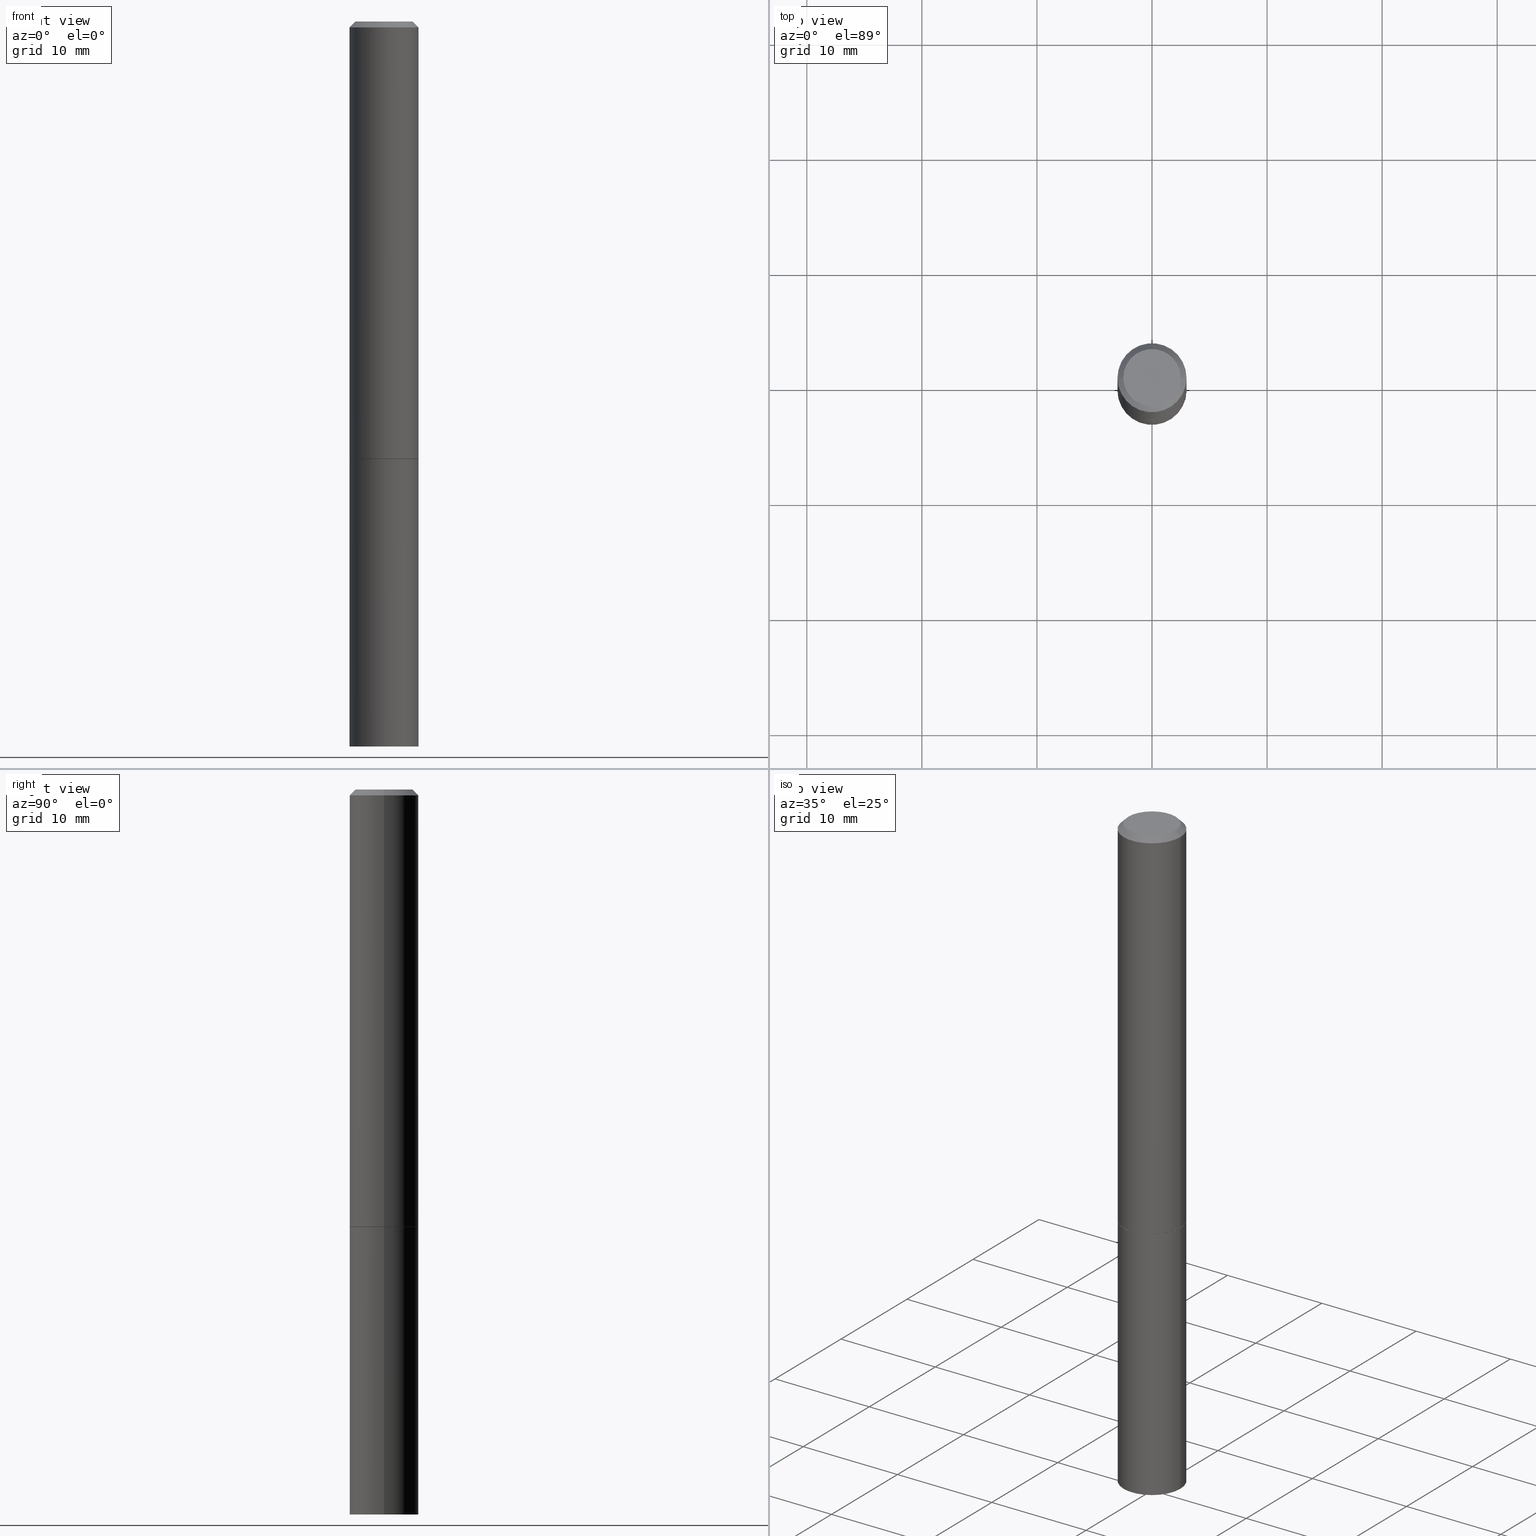
[diagram: canonical four-view strip — front | top / right | iso, engineering-drawing reading convention]
A machine part, canonical four-view strip (front | top / right | iso — engineering-drawing reading convention). The complete STEP part file that produces these views, byte-faithful:
ISO-10303-21;
HEADER;
FILE_DESCRIPTION (( 'STEP AP203' ),
    '1' );
FILE_NAME ('82991.STEP',
    '2024-02-29T21:14:55',
    ( '' ),
    ( '' ),
    'SwSTEP 2.0',
    'SolidWorks 2023',
    '' );
FILE_SCHEMA (( 'CONFIG_CONTROL_DESIGN' ));
ENDSEC;

DATA;
#1 =( LENGTH_UNIT ( ) NAMED_UNIT ( * ) SI_UNIT ( $, .METRE. ) );
#2 = EDGE_LOOP ( 'NONE', ( #226, #62, #176, #291 ) ) ;
#3 = APPROVAL ( #292, 'UNSPECIFIED' ) ;
#4 =( NAMED_UNIT ( * ) SI_UNIT ( $, .STERADIAN. ) SOLID_ANGLE_UNIT ( ) );
#5 = APPROVAL_STATUS ( 'not_yet_approved' ) ;
#6 = ORIENTED_EDGE ( 'NONE', *, *, #171, .T. ) ;
#7 = CIRCLE ( 'NONE', #296, 0.1180999999999999966 ) ;
#8 = CIRCLE ( 'NONE', #111, 0.09809999999999986786 ) ;
#9 = CARTESIAN_POINT ( 'NONE',  ( -0.09809999999999986786, 7.199434520694528223E-16, -1.707404996040655701E-17 ) ) ;
#10 = EDGE_LOOP ( 'NONE', ( #316, #66, #36, #224 ) ) ;
#11 = DIRECTION ( 'NONE',  ( -2.445468806185136597E-29, 3.491481338843145583E-15, 1.000000000000000000 ) ) ;
#12 = ADVANCED_FACE ( 'NONE', ( #230 ), #159, .T. ) ;
#13 = DATE_TIME_ROLE ( 'classification_date' ) ;
#14 = DIRECTION ( 'NONE',  ( -2.445468806185136597E-29, 3.491481338843145583E-15, 1.000000000000000000 ) ) ;
#15 = APPROVAL_DATE_TIME ( #348, #3 ) ;
#16 = LINE ( 'NONE', #128, #46 ) ;
#17 = FACE_OUTER_BOUND ( 'NONE', #2, .T. ) ;
#18 = FACE_OUTER_BOUND ( 'NONE', #10, .T. ) ;
#19 = DIRECTION ( 'NONE',  ( -2.445468806185136597E-29, 3.491481338843145583E-15, 1.000000000000000000 ) ) ;
#20 = APPROVAL ( #5, 'UNSPECIFIED' ) ;
#21 = FACE_OUTER_BOUND ( 'NONE', #88, .T. ) ;
#22 = DIRECTION ( 'NONE',  ( -2.445468806185136597E-29, 3.491481338843145583E-15, 1.000000000000000000 ) ) ;
#23 = DIRECTION ( 'NONE',  ( -2.445468806185136597E-29, 3.491481338843145583E-15, 1.000000000000000000 ) ) ;
#24 = EDGE_CURVE ( 'NONE', #259, #223, #74, .T. ) ;
#25 = CARTESIAN_POINT ( 'NONE',  ( 0.000000000000000000, 0.000000000000000000, 0.000000000000000000 ) ) ;
#26 = EDGE_LOOP ( 'NONE', ( #200, #150 ) ) ;
#27 = DIRECTION ( 'NONE',  ( 0.7071067811864267805, -2.468850131080992517E-15, 0.7071067811866682540 ) ) ;
#28 = VERTEX_POINT ( 'NONE', #327 ) ;
#29 = CC_DESIGN_DATE_AND_TIME_ASSIGNMENT ( #116, #84, ( #67 ) ) ;
#30 = AXIS2_PLACEMENT_3D ( 'NONE', #151, #210, #323 ) ;
#31 = LOCAL_TIME ( 16, 14, 55.00000000000000000, #153 ) ;
#32 = APPROVAL_PERSON_ORGANIZATION ( #124, #3, #297 ) ;
#33 = CALENDAR_DATE ( 2024, 29, 2 ) ;
#34 = VERTEX_POINT ( 'NONE', #350 ) ;
#35 = PERSON_AND_ORGANIZATION ( #252, #156 ) ;
#36 = ORIENTED_EDGE ( 'NONE', *, *, #352, .T. ) ;
#37 = CARTESIAN_POINT ( 'NONE',  ( 0.000000000000000000, 0.000000000000000000, 0.000000000000000000 ) ) ;
#38 = ORIENTED_EDGE ( 'NONE', *, *, #158, .T. ) ;
#39 = CIRCLE ( 'NONE', #289, 0.1180999999999999966 ) ;
#40 = CC_DESIGN_DATE_AND_TIME_ASSIGNMENT ( #231, #13, ( #311 ) ) ;
#41 = CALENDAR_DATE ( 2024, 29, 2 ) ;
#42 = ORIENTED_EDGE ( 'NONE', *, *, #183, .T. ) ;
#43 = ORIENTED_EDGE ( 'NONE', *, *, #229, .T. ) ;
#44 = PERSON_AND_ORGANIZATION_ROLE ( 'classification_officer' ) ;
#45 = CARTESIAN_POINT ( 'NONE',  ( -0.1170999999999999958, -4.391210539334270537E-15, -1.496000000000000663 ) ) ;
#46 = VECTOR ( 'NONE', #233, 39.37007874015748143 ) ;
#47 = LOCAL_TIME ( 16, 14, 55.00000000000000000, #263 ) ;
#48 = ORIENTED_EDGE ( 'NONE', *, *, #330, .T. ) ;
#49 = DIRECTION ( 'NONE',  ( 1.000000000000000000, -6.982962677686266711E-15, 4.876176775795936353E-29 ) ) ;
#50 = CARTESIAN_POINT ( 'NONE',  ( -0.1180999999999999966, -6.102437652888322939E-15, -2.480300000000000171 ) ) ;
#51 = DIRECTION ( 'NONE',  ( 2.438088387897960049E-29, -3.491481338843145188E-15, -1.000000000000000000 ) ) ;
#52 = CARTESIAN_POINT ( 'NONE',  ( 0.1180999999999999966, -9.484609056967403598E-15, -2.480300000000000171 ) ) ;
#53 = DIRECTION ( 'NONE',  ( 1.000000000000000000, -6.982962677686265922E-15, 4.876176775795935793E-29 ) ) ;
#54 = ADVANCED_FACE ( 'NONE', ( #72 ), #152, .T. ) ;
#55 = DIRECTION ( 'NONE',  ( 1.000000000000000000, -6.982962677686265133E-15, 0.000000000000000000 ) ) ;
#56 = CIRCLE ( 'NONE', #161, 0.1180999999999999966 ) ;
#57 = PERSON_AND_ORGANIZATION ( #252, #156 ) ;
#58 = EDGE_CURVE ( 'NONE', #255, #178, #98, .T. ) ;
#59 = DIRECTION ( 'NONE',  ( 0.000000000000000000, 0.000000000000000000, 1.000000000000000000 ) ) ;
#60 = ORIENTED_EDGE ( 'NONE', *, *, #24, .F. ) ;
#61 = DIRECTION ( 'NONE',  ( 1.000000000000000000, 0.000000000000000000, 0.000000000000000000 ) ) ;
#62 = ORIENTED_EDGE ( 'NONE', *, *, #136, .T. ) ;
#63 = CALENDAR_DATE ( 2024, 29, 2 ) ;
#64 = VERTEX_POINT ( 'NONE', #71 ) ;
#65 = PERSON_AND_ORGANIZATION ( #252, #156 ) ;
#66 = ORIENTED_EDGE ( 'NONE', *, *, #123, .T. ) ;
#67 = PRODUCT_DEFINITION ( 'UNKNOWN', '', #360, #202 ) ;
#68 = EDGE_LOOP ( 'NONE', ( #282, #92, #354, #114 ) ) ;
#69 = DIRECTION ( 'NONE',  ( 1.000000000000000000, -6.982962677686266711E-15, 0.000000000000000000 ) ) ;
#70 = CC_DESIGN_PERSON_AND_ORGANIZATION_ASSIGNMENT ( #257, #306, ( #360 ) ) ;
#71 = CARTESIAN_POINT ( 'NONE',  ( 0.1170999999999999958, -6.040961012466409185E-15, -1.496000000000000663 ) ) ;
#72 = FACE_OUTER_BOUND ( 'NONE', #68, .T. ) ;
#73 = CIRCLE ( 'NONE', #349, 0.1180999999999999966 ) ;
#74 = LINE ( 'NONE', #157, #78 ) ;
#75 = CARTESIAN_POINT ( 'NONE',  ( 4.890937612370276662E-31, -6.982962677686296539E-17, -0.02000000000000001776 ) ) ;
#76 = PRODUCT_RELATED_PRODUCT_CATEGORY ( 'detail', '', ( #328 ) ) ;
#77 = FACE_OUTER_BOUND ( 'NONE', #310, .T. ) ;
#78 = VECTOR ( 'NONE', #298, 39.37007874015748143 ) ;
#79 = DIRECTION ( 'NONE',  ( 1.000000000000000000, -6.982962677686264344E-15, 0.000000000000000000 ) ) ;
#80 = CONICAL_SURFACE ( 'NONE', #96, 0.1180999999999998162, 0.7853981633974468357 ) ;
#81 = DIRECTION ( 'NONE',  ( 1.000000000000000000, -6.982962677686273021E-15, 0.000000000000000000 ) ) ;
#82 = ADVANCED_FACE ( 'NONE', ( #18 ), #318, .T. ) ;
#83 = PLANE ( 'NONE',  #118 ) ;
#84 = DATE_TIME_ROLE ( 'creation_date' ) ;
#85 = PERSON_AND_ORGANIZATION ( #252, #156 ) ;
#86 = ORIENTED_EDGE ( 'NONE', *, *, #194, .F. ) ;
#87 = PERSON_AND_ORGANIZATION ( #252, #156 ) ;
#88 = EDGE_LOOP ( 'NONE', ( #6, #313 ) ) ;
#89 = CIRCLE ( 'NONE', #30, 0.09809999999999986786 ) ;
#90 = VECTOR ( 'NONE', #105, 39.37007874015748143 ) ;
#91 = DATE_AND_TIME ( #63, #258 ) ;
#92 = ORIENTED_EDGE ( 'NONE', *, *, #24, .T. ) ;
#93 = ADVANCED_FACE ( 'NONE', ( #17 ), #182, .T. ) ;
#94 = ORIENTED_EDGE ( 'NONE', *, *, #123, .F. ) ;
#95 = CARTESIAN_POINT ( 'NONE',  ( -0.1180999999999998995, 8.391509709326776054E-16, -5.809262341591038879E-30 ) ) ;
#96 = AXIS2_PLACEMENT_3D ( 'NONE', #160, #134, #238 ) ;
#97 = DIRECTION ( 'NONE',  ( 1.000000000000000000, -6.982962677686266711E-15, 4.876176775795935232E-29 ) ) ;
#98 = LINE ( 'NONE', #45, #274 ) ;
#99 = APPLICATION_CONTEXT ( 'configuration controlled 3d designs of mechanical parts and assemblies' ) ;
#100 = DIRECTION ( 'NONE',  ( 1.000000000000000000, -6.982962677686266711E-15, 0.000000000000000000 ) ) ;
#101 = CC_DESIGN_SECURITY_CLASSIFICATION ( #311, ( #360 ) ) ;
#102 = DIRECTION ( 'NONE',  ( 1.000000000000000000, -6.982962677686265133E-15, 0.000000000000000000 ) ) ;
#103 = EDGE_CURVE ( 'NONE', #317, #223, #56, .T. ) ;
#104 = FACE_OUTER_BOUND ( 'NONE', #339, .T. ) ;
#105 = DIRECTION ( 'NONE',  ( -0.7071067811865464625, 2.468850131082245622E-15, -0.7071067811865485719 ) ) ;
#106 = CIRCLE ( 'NONE', #126, 0.1180999999999998162 ) ;
#107 = DIRECTION ( 'NONE',  ( -2.445468806185136877E-29, 3.491481338843145188E-15, 1.000000000000000000 ) ) ;
#108 = FACE_OUTER_BOUND ( 'NONE', #284, .T. ) ;
#109 = DIRECTION ( 'NONE',  ( -2.438088387897960049E-29, 3.491481338843145188E-15, 1.000000000000000000 ) ) ;
#110 = COORDINATED_UNIVERSAL_TIME_OFFSET ( 5, 0, .BEHIND. ) ;
#111 = AXIS2_PLACEMENT_3D ( 'NONE', #271, #22, #137 ) ;
#112 = ORIENTED_EDGE ( 'NONE', *, *, #330, .F. ) ;
#113 = UNCERTAINTY_MEASURE_WITH_UNIT (LENGTH_MEASURE( 1.000000000000000082E-05 ), #120, 'distance_accuracy_value', 'NONE');
#114 = ORIENTED_EDGE ( 'NONE', *, *, #158, .F. ) ;
#115 = EDGE_CURVE ( 'NONE', #178, #34, #39, .T. ) ;
#116 = DATE_AND_TIME ( #33, #144 ) ;
#117 = ORIENTED_EDGE ( 'NONE', *, *, #229, .F. ) ;
#118 = AXIS2_PLACEMENT_3D ( 'NONE', #169, #361, #188 ) ;
#119 = AXIS2_PLACEMENT_3D ( 'NONE', #167, #273, #268 ) ;
#120 =( CONVERSION_BASED_UNIT ( 'INCH', #222 ) LENGTH_UNIT ( ) NAMED_UNIT ( #133 ) );
#121 = ORIENTED_EDGE ( 'NONE', *, *, #146, .F. ) ;
#122 = CARTESIAN_POINT ( 'NONE',  ( 3.658421334052965846E-29, -5.223256082909347726E-15, -1.496000000000000663 ) ) ;
#123 = EDGE_CURVE ( 'NONE', #255, #64, #337, .T. ) ;
#124 = PERSON_AND_ORGANIZATION ( #252, #156 ) ;
#125 = DIRECTION ( 'NONE',  ( 1.000000000000000000, -6.982962677686264344E-15, 0.000000000000000000 ) ) ;
#126 = AXIS2_PLACEMENT_3D ( 'NONE', #261, #320, #69 ) ;
#127 = AXIS2_PLACEMENT_3D ( 'NONE', #25, #358, #329 ) ;
#128 = CARTESIAN_POINT ( 'NONE',  ( 0.1180999999999999966, -8.246878922347480654E-16, 5.758764772215000440E-30 ) ) ;
#129 = LINE ( 'NONE', #95, #215 ) ;
#130 = CC_DESIGN_PERSON_AND_ORGANIZATION_ASSIGNMENT ( #87, #199, ( #328 ) ) ;
#131 = DIRECTION ( 'NONE',  ( -2.445468806185136597E-29, 3.491481338843145583E-15, 1.000000000000000000 ) ) ;
#132 = AXIS2_PLACEMENT_3D ( 'NONE', #262, #11, #49 ) ;
#133 = DIMENSIONAL_EXPONENTS ( 1.000000000000000000, 0.000000000000000000, 0.000000000000000000, 0.000000000000000000, 0.000000000000000000, 0.000000000000000000, 0.000000000000000000 ) ;
#134 = DIRECTION ( 'NONE',  ( 2.445468806185136597E-29, -3.491481338843145583E-15, -1.000000000000000000 ) ) ;
#135 = PLANE ( 'NONE',  #319 ) ;
#136 = EDGE_CURVE ( 'NONE', #178, #340, #129, .T. ) ;
#137 = DIRECTION ( 'NONE',  ( 1.000000000000000000, -6.982962677686265922E-15, 4.875229006325904019E-29 ) ) ;
#138 = CIRCLE ( 'NONE', #184, 0.1180999999999999966 ) ;
#139 = FACE_OUTER_BOUND ( 'NONE', #253, .T. ) ;
#140 = CONICAL_SURFACE ( 'NONE', #333, 0.1170999999999999958, 0.7853981633972775267 ) ;
#141 = FACE_OUTER_BOUND ( 'NONE', #345, .T. ) ;
#142 = DIRECTION ( 'NONE',  ( 0.7071067811865464625, -7.319954787623252890E-15, -0.7071067811865485719 ) ) ;
#143 = ORIENTED_EDGE ( 'NONE', *, *, #58, .T. ) ;
#144 = LOCAL_TIME ( 16, 14, 55.00000000000000000, #110 ) ;
#145 = ORIENTED_EDGE ( 'NONE', *, *, #285, .F. ) ;
#146 = EDGE_CURVE ( 'NONE', #223, #317, #280, .T. ) ;
#147 = PERSON_AND_ORGANIZATION_ROLE ( 'creator' ) ;
#148 = EDGE_LOOP ( 'NONE', ( #60, #43, #38, #121 ) ) ;
#149 = COORDINATED_UNIVERSAL_TIME_OFFSET ( 5, 0, .BEHIND. ) ;
#150 = ORIENTED_EDGE ( 'NONE', *, *, #146, .T. ) ;
#151 = CARTESIAN_POINT ( 'NONE',  ( 4.175405657340879278E-46, -5.961372681521788801E-32, -1.707404996040164512E-17 ) ) ;
#152 = CYLINDRICAL_SURFACE ( 'NONE', #132, 0.1180999999999999966 ) ;
#153 = COORDINATED_UNIVERSAL_TIME_OFFSET ( 5, 0, .BEHIND. ) ;
#154 = CARTESIAN_POINT ( 'NONE',  ( 3.655975865246779683E-29, -5.219764601570503930E-15, -1.495000000000000329 ) ) ;
#155 = AXIS2_PLACEMENT_3D ( 'NONE', #351, #235, #209 ) ;
#156 = ORGANIZATION ( 'UNSPECIFIED', 'UNSPECIFIED', '' ) ;
#157 = CARTESIAN_POINT ( 'NONE',  ( -0.1180999999999999966, 8.391509709326782957E-16, -5.809262341591043784E-30 ) ) ;
#158 = EDGE_CURVE ( 'NONE', #221, #317, #16, .T. ) ;
#159 = CYLINDRICAL_SURFACE ( 'NONE', #155, 0.1180999999999999966 ) ;
#160 = CARTESIAN_POINT ( 'NONE',  ( 4.890937612370276662E-31, -6.982962677686296539E-17, -0.02000000000000001776 ) ) ;
#161 = AXIS2_PLACEMENT_3D ( 'NONE', #180, #181, #294 ) ;
#162 = VECTOR ( 'NONE', #142, 39.37007874015748143 ) ;
#163 = DIRECTION ( 'NONE',  ( -1.000000000000000000, 6.982962677686265922E-15, -4.876176775795935793E-29 ) ) ;
#164 = EDGE_CURVE ( 'NONE', #321, #340, #168, .T. ) ;
#165 = CARTESIAN_POINT ( 'NONE',  ( 0.1180999999999998162, -8.800544403136795556E-16, -0.02000000000000001776 ) ) ;
#166 = PRODUCT_DEFINITION_SHAPE ( 'NONE', 'NONE',  #67 ) ;
#167 = CARTESIAN_POINT ( 'NONE',  ( 4.890937612370276662E-31, -6.982962677686296539E-17, -0.02000000000000001776 ) ) ;
#168 = CIRCLE ( 'NONE', #242, 0.1180999999999998162 ) ;
#169 = CARTESIAN_POINT ( 'NONE',  ( 8.246878922347846488E-16, 0.1180999999999947786, -1.496000000000000885 ) ) ;
#170 = AXIS2_PLACEMENT_3D ( 'NONE', #246, #109, #53 ) ;
#171 = EDGE_CURVE ( 'NONE', #365, #28, #89, .T. ) ;
#172 = APPROVAL_ROLE ( '' ) ;
#173 = ORIENTED_EDGE ( 'NONE', *, *, #183, .F. ) ;
#174 = MECHANICAL_CONTEXT ( 'NONE', #99, 'mechanical' ) ;
#175 = AXIS2_PLACEMENT_3D ( 'NONE', #300, #23, #191 ) ;
#176 = ORIENTED_EDGE ( 'NONE', *, *, #164, .F. ) ;
#177 = MANIFOLD_SOLID_BREP ( 'Body-Move/Copy2[2]', #347 ) ;
#178 = VERTEX_POINT ( 'NONE', #212 ) ;
#179 = EDGE_LOOP ( 'NONE', ( #86, #117 ) ) ;
#180 = CARTESIAN_POINT ( 'NONE',  ( 3.658421334052965286E-29, -5.223256082909346937E-15, -1.496000000000000441 ) ) ;
#181 = DIRECTION ( 'NONE',  ( -2.445468806185136597E-29, 3.491481338843145583E-15, 1.000000000000000000 ) ) ;
#182 = CYLINDRICAL_SURFACE ( 'NONE', #237, 0.1180999999999998995 ) ;
#183 = EDGE_CURVE ( 'NONE', #340, #321, #106, .T. ) ;
#184 = AXIS2_PLACEMENT_3D ( 'NONE', #245, #19, #55 ) ;
#185 = CARTESIAN_POINT ( 'NONE',  ( 3.658421334052965846E-29, -5.223256082909347726E-15, -1.496000000000000663 ) ) ;
#186 = DIRECTION ( 'NONE',  ( -1.000000000000000000, 6.982962677686265922E-15, -4.876176775795935793E-29 ) ) ;
#187 = EDGE_CURVE ( 'NONE', #34, #321, #241, .T. ) ;
#188 = DIRECTION ( 'NONE',  ( -1.000000000000000000, 6.982962677686265922E-15, -4.876176775795935793E-29 ) ) ;
#189 = AXIS2_PLACEMENT_3D ( 'NONE', #236, #264, #102 ) ;
#190 = AXIS2_PLACEMENT_3D ( 'NONE', #122, #131, #346 ) ;
#191 = DIRECTION ( 'NONE',  ( 1.000000000000000000, -6.982962677686264344E-15, 0.000000000000000000 ) ) ;
#192 = PLANE ( 'NONE',  #325 ) ;
#193 = DIRECTION ( 'NONE',  ( -2.445468806185136597E-29, 3.491481338843145583E-15, 1.000000000000000000 ) ) ;
#194 = EDGE_CURVE ( 'NONE', #221, #259, #7, .T. ) ;
#195 = CALENDAR_DATE ( 2024, 29, 2 ) ;
#196 = ORIENTED_EDGE ( 'NONE', *, *, #164, .T. ) ;
#197 = EDGE_CURVE ( 'NONE', #34, #178, #138, .T. ) ;
#198 = LINE ( 'NONE', #364, #211 ) ;
#199 = PERSON_AND_ORGANIZATION_ROLE ( 'design_owner' ) ;
#200 = ORIENTED_EDGE ( 'NONE', *, *, #103, .T. ) ;
#201 = APPROVAL_ROLE ( '' ) ;
#202 = DESIGN_CONTEXT ( 'detailed design', #266, 'design' ) ;
#203 = ORIENTED_EDGE ( 'NONE', *, *, #256, .T. ) ;
#204 = ADVANCED_FACE ( 'NONE', ( #335 ), #83, .F. ) ;
#205 = DIRECTION ( 'NONE',  ( -2.445468806185136597E-29, 3.491481338843145583E-15, 1.000000000000000000 ) ) ;
#206 = CC_DESIGN_APPROVAL ( #3, ( #311 ) ) ;
#207 = ORIENTED_EDGE ( 'NONE', *, *, #352, .F. ) ;
#208 = ADVANCED_FACE ( 'NONE', ( #240 ), #192, .T. ) ;
#209 = DIRECTION ( 'NONE',  ( 1.000000000000000000, -6.982962677686266711E-15, 4.876176775795936353E-29 ) ) ;
#210 = DIRECTION ( 'NONE',  ( -2.445468806185136597E-29, 3.491481338843145583E-15, 1.000000000000000000 ) ) ;
#211 = VECTOR ( 'NONE', #27, 39.37007874015748143 ) ;
#212 = CARTESIAN_POINT ( 'NONE',  ( -0.1180999999999999966, -1.805646143241002656E-15, -1.495000000000000329 ) ) ;
#213 = CARTESIAN_POINT ( 'NONE',  ( 6.850286386810217648E-16, 0.09809999999999986786, -3.510513443207129191E-16 ) ) ;
#214 = CARTESIAN_POINT ( 'NONE',  ( 3.658421334052965846E-29, -5.223256082909347726E-15, -1.496000000000000663 ) ) ;
#215 = VECTOR ( 'NONE', #353, 39.37007874015748143 ) ;
#216 = CARTESIAN_POINT ( 'NONE',  ( 0.1180999999999998995, -8.246878922347473751E-16, 5.758764772214994835E-30 ) ) ;
#217 = CARTESIAN_POINT ( 'NONE',  ( -0.1180999999999998162, 7.548582654578837811E-16, -0.02000000000000001776 ) ) ;
#218 = CARTESIAN_POINT ( 'NONE',  ( -0.1170999999999999958, -4.385912084986047346E-15, -1.496000000000000663 ) ) ;
#219 = ADVANCED_BREP_SHAPE_REPRESENTATION ( '82991', ( #288, #177, #302 ), #290 ) ;
#220 = SECURITY_CLASSIFICATION_LEVEL ( 'unclassified' ) ;
#221 = VERTEX_POINT ( 'NONE', #52 ) ;
#222 = LENGTH_MEASURE_WITH_UNIT ( LENGTH_MEASURE( 0.02539999999999999897 ), #1 );
#223 = VERTEX_POINT ( 'NONE', #304 ) ;
#224 = ORIENTED_EDGE ( 'NONE', *, *, #115, .F. ) ;
#225 = CIRCLE ( 'NONE', #175, 0.1170999999999999958 ) ;
#226 = ORIENTED_EDGE ( 'NONE', *, *, #197, .T. ) ;
#227 = APPLICATION_PROTOCOL_DEFINITION ( 'international standard', 'config_control_design', 1994, #266 ) ;
#228 = ORIENTED_EDGE ( 'NONE', *, *, #115, .T. ) ;
#229 = EDGE_CURVE ( 'NONE', #259, #221, #73, .T. ) ;
#230 = FACE_OUTER_BOUND ( 'NONE', #148, .T. ) ;
#231 = DATE_AND_TIME ( #234, #31 ) ;
#232 = DIRECTION ( 'NONE',  ( -2.445468806185136597E-29, 3.491481338843145583E-15, 1.000000000000000000 ) ) ;
#233 = DIRECTION ( 'NONE',  ( -2.445468806185136877E-29, 3.491481338843145188E-15, 1.000000000000000000 ) ) ;
#234 = CALENDAR_DATE ( 2024, 29, 2 ) ;
#235 = DIRECTION ( 'NONE',  ( -2.445468806185136597E-29, 3.491481338843145583E-15, 1.000000000000000000 ) ) ;
#236 = CARTESIAN_POINT ( 'NONE',  ( 3.658421334052965286E-29, -5.223256082909346937E-15, -1.496000000000000441 ) ) ;
#237 = AXIS2_PLACEMENT_3D ( 'NONE', #295, #232, #97 ) ;
#238 = DIRECTION ( 'NONE',  ( -1.000000000000000000, 6.982962677686266711E-15, 0.000000000000000000 ) ) ;
#239 = ADVANCED_FACE ( 'NONE', ( #21 ), #135, .F. ) ;
#240 = FACE_OUTER_BOUND ( 'NONE', #179, .T. ) ;
#241 = LINE ( 'NONE', #216, #332 ) ;
#242 = AXIS2_PLACEMENT_3D ( 'NONE', #75, #265, #100 ) ;
#243 = LOCAL_TIME ( 16, 14, 55.00000000000000000, #149 ) ;
#244 = ADVANCED_FACE ( 'NONE', ( #108 ), #276, .T. ) ;
#245 = CARTESIAN_POINT ( 'NONE',  ( 3.655975865246779683E-29, -5.219764601570503930E-15, -1.495000000000000329 ) ) ;
#246 = CARTESIAN_POINT ( 'NONE',  ( 3.658421334052965846E-29, -5.223256082909347726E-15, -1.496000000000000663 ) ) ;
#247 = DATE_AND_TIME ( #195, #243 ) ;
#248 = ORIENTED_EDGE ( 'NONE', *, *, #256, .F. ) ;
#249 = ADVANCED_FACE ( 'NONE', ( #141 ), #362, .F. ) ;
#250 = LINE ( 'NONE', #308, #162 ) ;
#251 = APPROVAL_PERSON_ORGANIZATION ( #65, #20, #201 ) ;
#252 = PERSON ( 'UNSPECIFIED', 'UNSPECIFIED', 'UNSPECIFIED', ('UNSPECIFIED'), ('UNSPECIFIED'), ('UNSPECIFIED') ) ;
#253 = EDGE_LOOP ( 'NONE', ( #112, #293, #344, #42 ) ) ;
#254 = APPLICATION_PROTOCOL_DEFINITION ( 'international standard', 'config_control_design', 1994, #99 ) ;
#255 = VERTEX_POINT ( 'NONE', #218 ) ;
#256 = EDGE_CURVE ( 'NONE', #64, #255, #225, .T. ) ;
#257 = PERSON_AND_ORGANIZATION ( #252, #156 ) ;
#258 = LOCAL_TIME ( 16, 14, 55.00000000000000000, #281 ) ;
#259 = VERTEX_POINT ( 'NONE', #50 ) ;
#260 = SHAPE_DEFINITION_REPRESENTATION ( #166, #219 ) ;
#261 = CARTESIAN_POINT ( 'NONE',  ( 4.890937612370276662E-31, -6.982962677686296539E-17, -0.02000000000000001776 ) ) ;
#262 = CARTESIAN_POINT ( 'NONE',  ( 0.000000000000000000, 0.000000000000000000, 0.000000000000000000 ) ) ;
#263 = COORDINATED_UNIVERSAL_TIME_OFFSET ( 5, 0, .BEHIND. ) ;
#264 = DIRECTION ( 'NONE',  ( -2.445468806185136597E-29, 3.491481338843145583E-15, 1.000000000000000000 ) ) ;
#265 = DIRECTION ( 'NONE',  ( -2.445468806185136597E-29, 3.491481338843145583E-15, 1.000000000000000000 ) ) ;
#266 = APPLICATION_CONTEXT ( 'configuration controlled 3d designs of mechanical parts and assemblies' ) ;
#267 = DIRECTION ( 'NONE',  ( 1.000000000000000000, -6.982962677686265133E-15, 0.000000000000000000 ) ) ;
#268 = DIRECTION ( 'NONE',  ( -1.000000000000000000, 6.982962677686266711E-15, 0.000000000000000000 ) ) ;
#269 = APPROVAL_PERSON_ORGANIZATION ( #343, #307, #172 ) ;
#270 = DIRECTION ( 'NONE',  ( 1.000000000000000000, -6.982962677686273021E-15, 0.000000000000000000 ) ) ;
#271 = CARTESIAN_POINT ( 'NONE',  ( 4.175405657340879278E-46, -5.961372681521788801E-32, -1.707404996040164512E-17 ) ) ;
#272 = ADVANCED_FACE ( 'NONE', ( #77 ), #275, .T. ) ;
#273 = DIRECTION ( 'NONE',  ( 2.445468806185136597E-29, -3.491481338843145583E-15, -1.000000000000000000 ) ) ;
#274 = VECTOR ( 'NONE', #322, 39.37007874015748143 ) ;
#275 = CONICAL_SURFACE ( 'NONE', #119, 0.1180999999999998162, 0.7853981633974468357 ) ;
#276 = CYLINDRICAL_SURFACE ( 'NONE', #127, 0.1180999999999998995 ) ;
#277 = ADVANCED_FACE ( 'NONE', ( #139 ), #80, .T. ) ;
#278 = PERSON_AND_ORGANIZATION_ROLE ( 'design_supplier' ) ;
#279 = ORIENTED_EDGE ( 'NONE', *, *, #136, .F. ) ;
#280 = CIRCLE ( 'NONE', #189, 0.1180999999999999966 ) ;
#281 = COORDINATED_UNIVERSAL_TIME_OFFSET ( 5, 0, .BEHIND. ) ;
#282 = ORIENTED_EDGE ( 'NONE', *, *, #194, .T. ) ;
#283 = APPROVAL_DATE_TIME ( #91, #307 ) ;
#284 = EDGE_LOOP ( 'NONE', ( #279, #228, #287, #173 ) ) ;
#285 = EDGE_CURVE ( 'NONE', #365, #340, #355, .T. ) ;
#286 = APPROVAL_DATE_TIME ( #247, #20 ) ;
#287 = ORIENTED_EDGE ( 'NONE', *, *, #187, .T. ) ;
#288 = MANIFOLD_SOLID_BREP ( 'Body-Move/Copy2[1]', #359 ) ;
#289 = AXIS2_PLACEMENT_3D ( 'NONE', #154, #205, #267 ) ;
#290 =( GEOMETRIC_REPRESENTATION_CONTEXT ( 3 ) GLOBAL_UNCERTAINTY_ASSIGNED_CONTEXT ( ( #113 ) ) GLOBAL_UNIT_ASSIGNED_CONTEXT ( ( #120, #315, #4 ) ) REPRESENTATION_CONTEXT ( 'NONE', 'WORKASPACE' ) );
#291 = ORIENTED_EDGE ( 'NONE', *, *, #187, .F. ) ;
#292 = APPROVAL_STATUS ( 'not_yet_approved' ) ;
#293 = ORIENTED_EDGE ( 'NONE', *, *, #171, .F. ) ;
#294 = DIRECTION ( 'NONE',  ( 1.000000000000000000, -6.982962677686265133E-15, 0.000000000000000000 ) ) ;
#295 = CARTESIAN_POINT ( 'NONE',  ( 0.000000000000000000, 0.000000000000000000, 0.000000000000000000 ) ) ;
#296 = AXIS2_PLACEMENT_3D ( 'NONE', #336, #334, #81 ) ;
#297 = APPROVAL_ROLE ( '' ) ;
#298 = DIRECTION ( 'NONE',  ( -2.445468806185136877E-29, 3.491481338843145188E-15, 1.000000000000000000 ) ) ;
#299 = CC_DESIGN_PERSON_AND_ORGANIZATION_ASSIGNMENT ( #85, #44, ( #311 ) ) ;
#300 = CARTESIAN_POINT ( 'NONE',  ( 3.658421334052965846E-29, -5.223256082909347726E-15, -1.496000000000000663 ) ) ;
#301 = CARTESIAN_POINT ( 'NONE',  ( 8.246878922348086105E-16, 0.1180999999999913369, -2.480300000000001059 ) ) ;
#302 = AXIS2_PLACEMENT_3D ( 'NONE', #37, #59, #61 ) ;
#303 = CARTESIAN_POINT ( 'NONE',  ( 0.1180999999999999966, -6.047943975144094411E-15, -1.496000000000000441 ) ) ;
#304 = CARTESIAN_POINT ( 'NONE',  ( -0.1180999999999999966, -6.102437652888322939E-15, -1.496000000000000441 ) ) ;
#305 = CARTESIAN_POINT ( 'NONE',  ( 6.065496279980994755E-29, -8.659921164732655335E-15, -2.480300000000000171 ) ) ;
#306 = PERSON_AND_ORGANIZATION_ROLE ( 'creator' ) ;
#307 = APPROVAL ( #338, 'UNSPECIFIED' ) ;
#308 = CARTESIAN_POINT ( 'NONE',  ( 0.1180999999999998162, -8.800544403136795556E-16, -0.02000000000000001776 ) ) ;
#309 = ORIENTED_EDGE ( 'NONE', *, *, #326, .F. ) ;
#310 = EDGE_LOOP ( 'NONE', ( #309, #48, #196, #145 ) ) ;
#311 = SECURITY_CLASSIFICATION ( '', '', #220 ) ;
#312 = CARTESIAN_POINT ( 'NONE',  ( -0.1180999999999998162, 7.548582654578837811E-16, -0.02000000000000001776 ) ) ;
#313 = ORIENTED_EDGE ( 'NONE', *, *, #326, .T. ) ;
#314 = ADVANCED_FACE ( 'NONE', ( #104 ), #140, .T. ) ;
#315 =( NAMED_UNIT ( * ) PLANE_ANGLE_UNIT ( ) SI_UNIT ( $, .RADIAN. ) );
#316 = ORIENTED_EDGE ( 'NONE', *, *, #58, .F. ) ;
#317 = VERTEX_POINT ( 'NONE', #303 ) ;
#318 = CONICAL_SURFACE ( 'NONE', #324, 0.1170999999999999958, 0.7853981633972775267 ) ;
#319 = AXIS2_PLACEMENT_3D ( 'NONE', #213, #357, #186 ) ;
#320 = DIRECTION ( 'NONE',  ( -2.445468806185136597E-29, 3.491481338843145583E-15, 1.000000000000000000 ) ) ;
#321 = VERTEX_POINT ( 'NONE', #165 ) ;
#322 = DIRECTION ( 'NONE',  ( -0.7071067811864267805, 7.493145998869918709E-15, 0.7071067811866682540 ) ) ;
#323 = DIRECTION ( 'NONE',  ( 1.000000000000000000, -6.982962677686265922E-15, 4.875229006325904019E-29 ) ) ;
#324 = AXIS2_PLACEMENT_3D ( 'NONE', #185, #14, #125 ) ;
#325 = AXIS2_PLACEMENT_3D ( 'NONE', #301, #51, #163 ) ;
#326 = EDGE_CURVE ( 'NONE', #28, #365, #8, .T. ) ;
#327 = CARTESIAN_POINT ( 'NONE',  ( 0.09809999999999986786, -7.765346469475328709E-16, -1.707404996039653601E-17 ) ) ;
#328 = PRODUCT ( '82991', '82991', '', ( #174 ) ) ;
#329 = DIRECTION ( 'NONE',  ( 1.000000000000000000, -6.982962677686266711E-15, 4.876176775795935232E-29 ) ) ;
#330 = EDGE_CURVE ( 'NONE', #28, #321, #250, .T. ) ;
#331 = DIRECTION ( 'NONE',  ( -2.445468806185136597E-29, 3.491481338843145583E-15, 1.000000000000000000 ) ) ;
#332 = VECTOR ( 'NONE', #107, 39.37007874015748143 ) ;
#333 = AXIS2_PLACEMENT_3D ( 'NONE', #214, #331, #79 ) ;
#334 = DIRECTION ( 'NONE',  ( -2.445468806185136597E-29, 3.491481338843145583E-15, 1.000000000000000000 ) ) ;
#335 = FACE_OUTER_BOUND ( 'NONE', #26, .T. ) ;
#336 = CARTESIAN_POINT ( 'NONE',  ( 6.065496279980994755E-29, -8.659921164732655335E-15, -2.480300000000000171 ) ) ;
#337 = CIRCLE ( 'NONE', #190, 0.1170999999999999958 ) ;
#338 = APPROVAL_STATUS ( 'not_yet_approved' ) ;
#339 = EDGE_LOOP ( 'NONE', ( #203, #143, #341, #207 ) ) ;
#340 = VERTEX_POINT ( 'NONE', #312 ) ;
#341 = ORIENTED_EDGE ( 'NONE', *, *, #197, .F. ) ;
#342 = CC_DESIGN_APPROVAL ( #20, ( #360 ) ) ;
#343 = PERSON_AND_ORGANIZATION ( #252, #156 ) ;
#344 = ORIENTED_EDGE ( 'NONE', *, *, #285, .T. ) ;
#345 = EDGE_LOOP ( 'NONE', ( #248, #94 ) ) ;
#346 = DIRECTION ( 'NONE',  ( 1.000000000000000000, -6.982962677686264344E-15, 0.000000000000000000 ) ) ;
#347 = CLOSED_SHELL ( 'NONE', ( #314, #93, #272, #277, #244, #82, #249, #239 ) ) ;
#348 = DATE_AND_TIME ( #41, #47 ) ;
#349 = AXIS2_PLACEMENT_3D ( 'NONE', #305, #193, #270 ) ;
#350 = CARTESIAN_POINT ( 'NONE',  ( 0.1180999999999999966, -6.044452493805252192E-15, -1.495000000000000329 ) ) ;
#351 = CARTESIAN_POINT ( 'NONE',  ( 0.000000000000000000, 0.000000000000000000, 0.000000000000000000 ) ) ;
#352 = EDGE_CURVE ( 'NONE', #64, #34, #198, .T. ) ;
#353 = DIRECTION ( 'NONE',  ( -2.445468806185136877E-29, 3.491481338843145188E-15, 1.000000000000000000 ) ) ;
#354 = ORIENTED_EDGE ( 'NONE', *, *, #103, .F. ) ;
#355 = LINE ( 'NONE', #217, #90 ) ;
#356 = CC_DESIGN_PERSON_AND_ORGANIZATION_ASSIGNMENT ( #35, #147, ( #67 ) ) ;
#357 = DIRECTION ( 'NONE',  ( 2.438088387897960049E-29, -3.491481338843145188E-15, -1.000000000000000000 ) ) ;
#358 = DIRECTION ( 'NONE',  ( -2.445468806185136597E-29, 3.491481338843145583E-15, 1.000000000000000000 ) ) ;
#359 = CLOSED_SHELL ( 'NONE', ( #54, #208, #204, #12 ) ) ;
#360 = PRODUCT_DEFINITION_FORMATION_WITH_SPECIFIED_SOURCE ( 'ANY', '', #328, .NOT_KNOWN. ) ;
#361 = DIRECTION ( 'NONE',  ( 2.438088387897960049E-29, -3.491481338843145188E-15, -1.000000000000000000 ) ) ;
#362 = PLANE ( 'NONE',  #170 ) ;
#363 = CC_DESIGN_PERSON_AND_ORGANIZATION_ASSIGNMENT ( #57, #278, ( #360 ) ) ;
#364 = CARTESIAN_POINT ( 'NONE',  ( 0.1170999999999999958, -6.040961012466409185E-15, -1.496000000000000663 ) ) ;
#365 = VERTEX_POINT ( 'NONE', #9 ) ;
#366 = CC_DESIGN_APPROVAL ( #307, ( #67 ) ) ;
ENDSEC;
END-ISO-10303-21;
